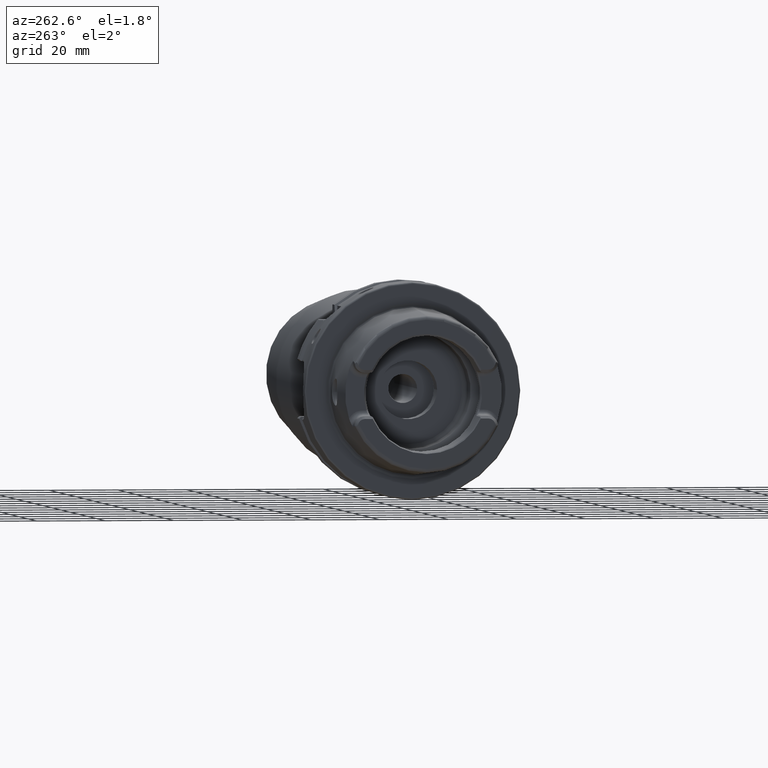
[diagram: clean part render]
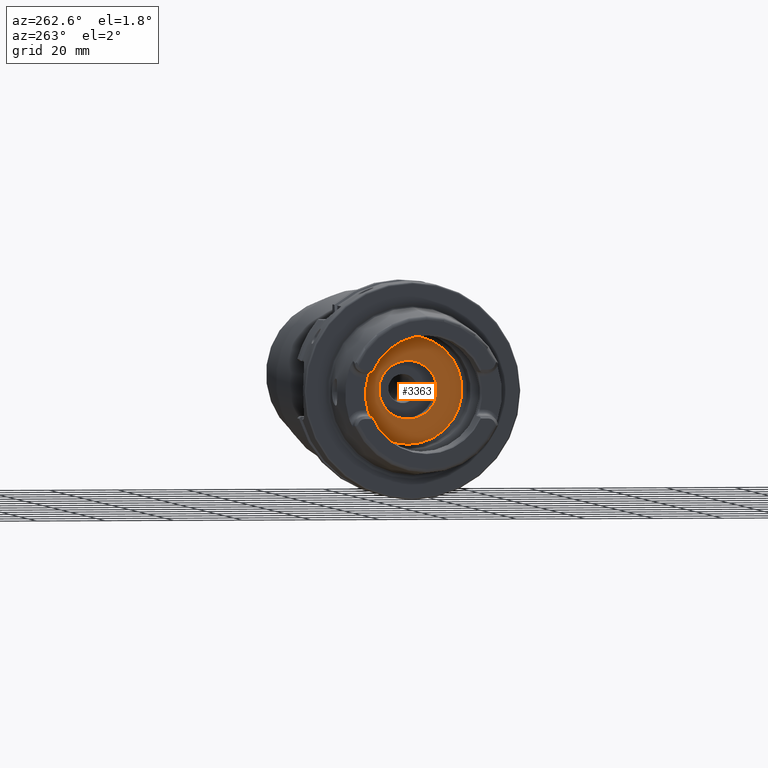
[diagram: same view with one face highlighted and labeled with its STEP entity id]
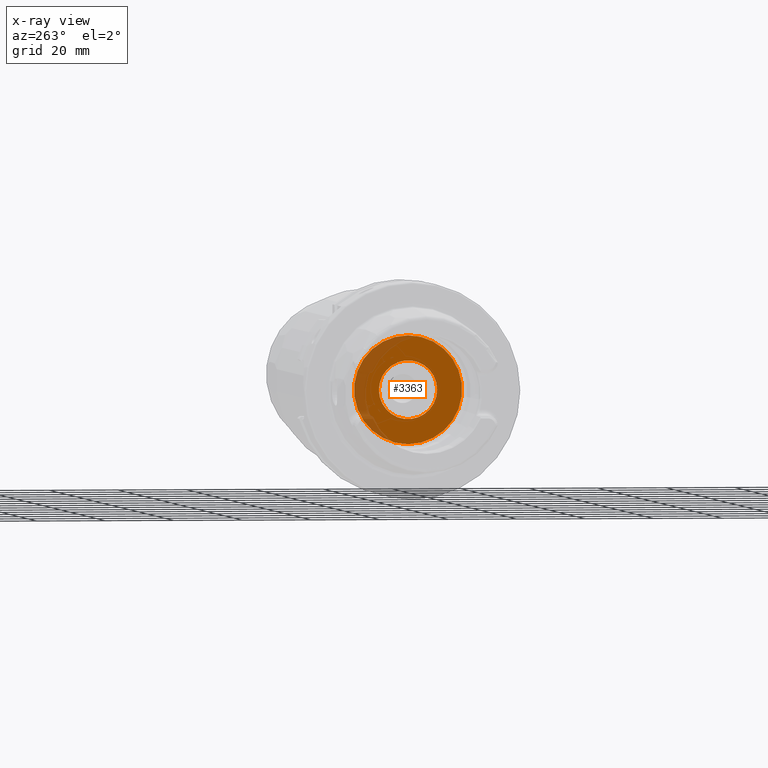
[diagram: x-ray of the same camera — body ghosted, the highlighted face saturated]
A machine part, auxiliary view. The second image highlights one B-rep face of the part: STEP entity #3363.
The next image is the same camera in x-ray: the body ghosted, the highlighted face saturated — about 20% of this face is hidden behind the body in this view.
In plain terms, the highlighted planar face has unit normal (1, 0, 0).
Its self-contained STEP definition (entity closure, byte-faithful):
#338=CARTESIAN_POINT('',(1.E1,0.E0,0.E0));
#339=DIRECTION('',(-1.E0,0.E0,0.E0));
#340=DIRECTION('',(0.E0,0.E0,-1.E0));
#341=AXIS2_PLACEMENT_3D('',#338,#339,#340);
#348=CARTESIAN_POINT('',(1.E1,0.E0,0.E0));
#349=DIRECTION('',(1.E0,0.E0,0.E0));
#350=DIRECTION('',(0.E0,0.E0,-1.E0));
#351=AXIS2_PLACEMENT_3D('',#348,#349,#350);
#353=CARTESIAN_POINT('',(1.E1,0.E0,0.E0));
#354=DIRECTION('',(-1.E0,0.E0,0.E0));
#355=DIRECTION('',(0.E0,1.E0,0.E0));
#356=AXIS2_PLACEMENT_3D('',#353,#354,#355);
#358=CARTESIAN_POINT('',(1.E1,0.E0,0.E0));
#359=DIRECTION('',(-1.E0,0.E0,0.E0));
#360=DIRECTION('',(0.E0,-1.E0,0.E0));
#361=AXIS2_PLACEMENT_3D('',#358,#359,#360);
#2607=CARTESIAN_POINT('',(1.E1,0.E0,-1.575E1));
#2608=CARTESIAN_POINT('',(1.E1,0.E0,1.575E1));
#2609=VERTEX_POINT('',#2607);
#2610=VERTEX_POINT('',#2608);
#2611=CARTESIAN_POINT('',(1.E1,8.5E0,0.E0));
#2612=CARTESIAN_POINT('',(1.E1,-8.5E0,0.E0));
#2613=VERTEX_POINT('',#2611);
#2614=VERTEX_POINT('',#2612);
#3348=CARTESIAN_POINT('',(1.E1,0.E0,0.E0));
#3349=DIRECTION('',(1.E0,0.E0,0.E0));
#3350=DIRECTION('',(0.E0,0.E0,1.E0));
#3351=AXIS2_PLACEMENT_3D('',#3348,#3349,#3350);
#3352=PLANE('',#3351);
#3353=ORIENTED_EDGE('',*,*,#3328,.F.);
#3354=ORIENTED_EDGE('',*,*,#3342,.T.);
#3355=EDGE_LOOP('',(#3353,#3354));
#3356=FACE_OUTER_BOUND('',#3355,.F.);
#3358=ORIENTED_EDGE('',*,*,#3357,.T.);
#3360=ORIENTED_EDGE('',*,*,#3359,.T.);
#3361=EDGE_LOOP('',(#3358,#3360));
#3362=FACE_BOUND('',#3361,.F.);
#3363=ADVANCED_FACE('',(#3356,#3362),#3352,.F.);
#342=CIRCLE('',#341,1.575E1);
#352=CIRCLE('',#351,1.575E1);
#357=CIRCLE('',#356,8.5E0);
#362=CIRCLE('',#361,8.5E0);
#3328=EDGE_CURVE('',#2609,#2610,#342,.T.);
#3342=EDGE_CURVE('',#2609,#2610,#352,.T.);
#3357=EDGE_CURVE('',#2613,#2614,#357,.T.);
#3359=EDGE_CURVE('',#2614,#2613,#362,.T.);